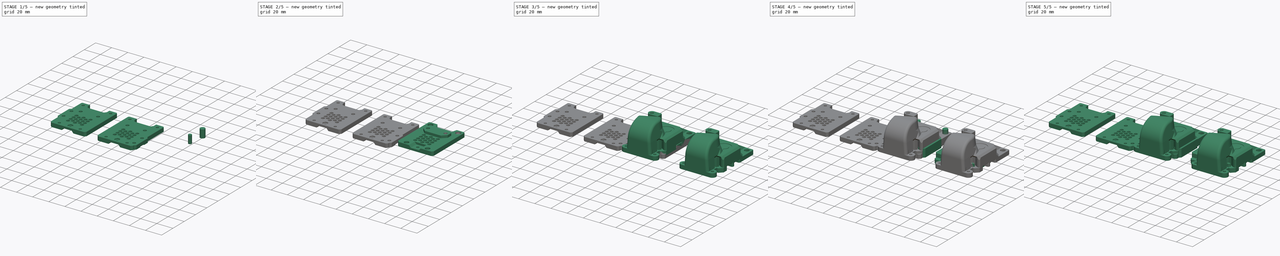
[diagram: build sequence overview — one tinted view per stage of 5, left to right]
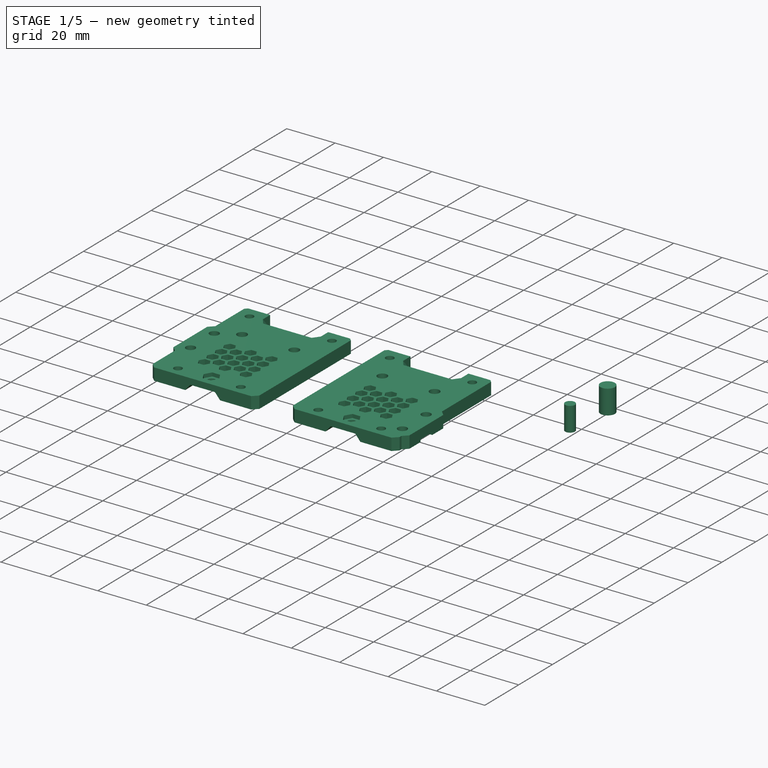
[diagram: stage 1 of 5 — iso view after this stage's code; geometry added in this stage tinted green]
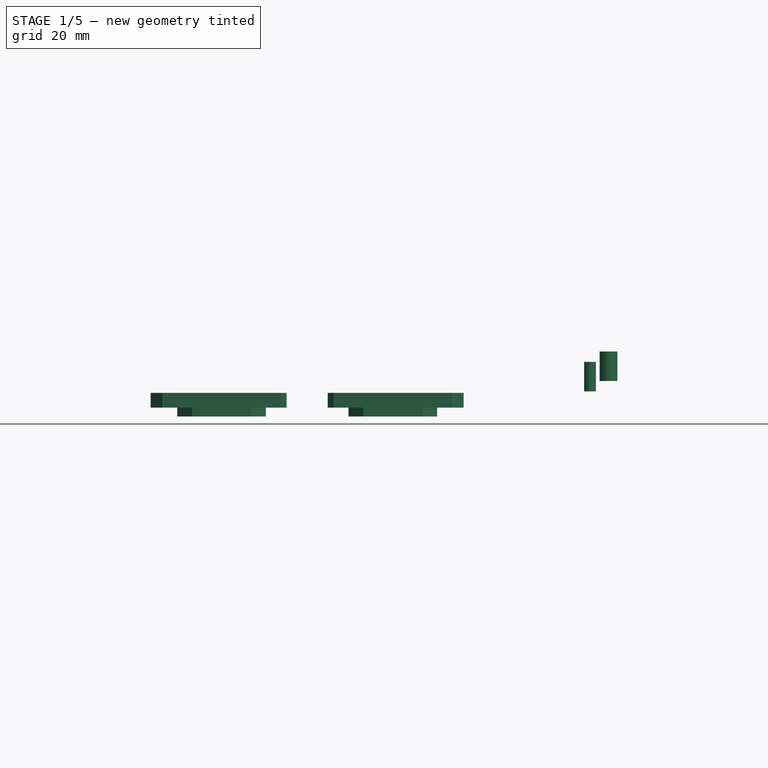
[diagram: stage 1 of 5 — front view after this stage's code; geometry added in this stage tinted green]
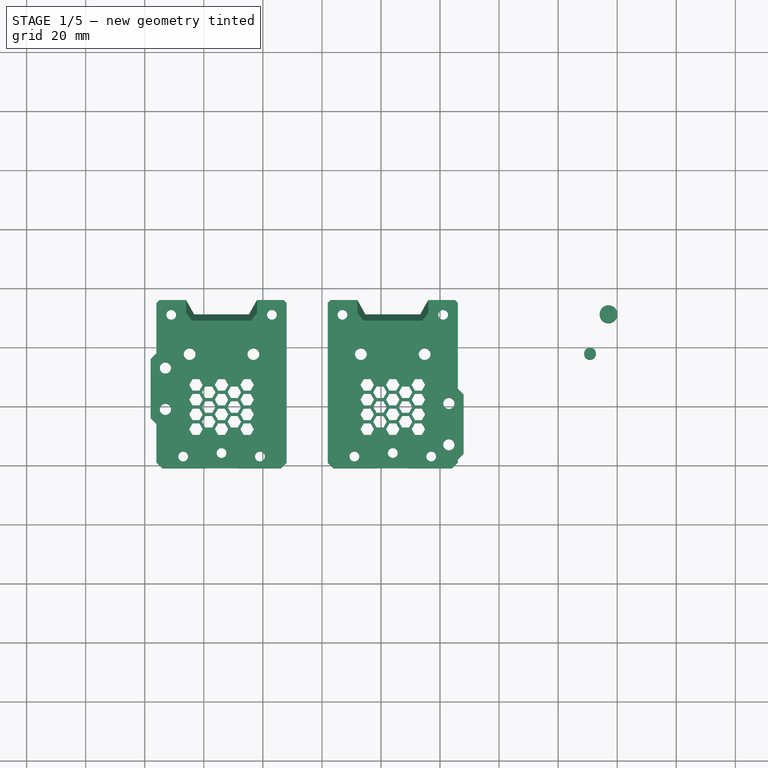
[diagram: stage 1 of 5 — top view after this stage's code; geometry added in this stage tinted green]
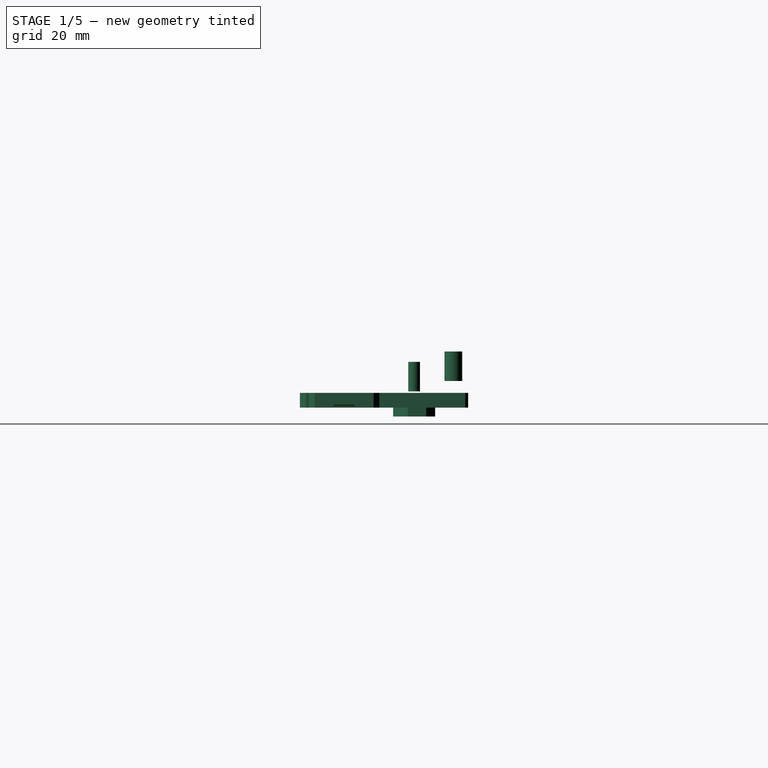
[diagram: stage 1 of 5 — right view after this stage's code; geometry added in this stage tinted green]
FCSTD DOCUMENT  (FreeCAD 0.19R24291 (Git))
Label: mounting-plate-2020-idex
License: All rights reserved
LicenseURL: http://en.wikipedia.org/wiki/All_rights_reserved
objects: Part::Cut×23, Part::Box×20, Part::Feature×19, Part::MultiFuse×17, Part::Cylinder×16, Part::Chamfer×13, PartDesign::Pad×6, Part::MultiCommon×3, Part::Extrusion×2, PartDesign::FeatureBase×2, Sketcher::SketchObject×2, PartDesign::Body×2
note: 131 computed .brp shape members not serialized (recipe doc carries the construction recipe); baked Part::Feature solids carry a one-line shape summary decoded from their .brp

FEATURE [Part::Feature] Part__Feature079  label="universal_face005"
  Placement = pos=(-0.00422634,7.50353,0.50127) rot=(-1,0,0;1.5708rad)
  shape: bbox 44.11 x 57.01 x 8.01 mm, 258 faces (baked)
FEATURE [Part::Feature] Part__Feature074_cs003
  shape: bbox 30 x 14.2 x 3e-07 mm, 0 faces, 0 solids (baked)
FEATURE [Part::Box] Box033  label="Cube029"
  AttacherType = Attacher::AttachEngine3D
  Height = 2.5
  Length = 12
  Placement = pos=(-24,-9.5,4.5) rot=(0,0,1;0rad)
  Width = 7
FEATURE [Part::Cylinder] Cylinder030
  Angle = 360
  AttacherType = Attacher::AttachEngine3D
  Height = 10
  Placement = pos=(19,13,0) rot=(0,0,1;0rad)
  Radius = 1.9
FEATURE [Part::Cylinder] Cylinder031
  Angle = 360
  AttacherType = Attacher::AttachEngine3D
  Height = 10
  Placement = pos=(-19,-13,0) rot=(0,0,1;0rad)
  Radius = 1.9
FEATURE [Part::Box] Box035  label="Cube031"
  AttacherType = Attacher::AttachEngine3D
  Height = 5
  Length = 3
  Placement = pos=(-24,-18,0.5) rot=(0,0,1;0rad)
  Width = 24
FEATURE [Part::Box] Box031  label="Cube027"
  AttacherType = Attacher::AttachEngine3D
  Height = 2.5
  Length = 12
  Placement = pos=(12,2.5,4.5) rot=(0,0,1;0rad)
  Width = 7
FEATURE [Part::Cylinder] Cylinder027
  Angle = 360
  AttacherType = Attacher::AttachEngine3D
  Height = 10
  Placement = pos=(19,-1,0) rot=(0,0,1;0rad)
  Radius = 1.9
FEATURE [Part::Chamfer] Chamfer008007
  Base = -> Box035
  Edges = 2 edges r=2: [Edge1,Edge3]
FEATURE [Part::Cylinder] Cylinder037
  Angle = 360
  AttacherType = Attacher::AttachEngine3D
  Height = 10
  Placement = pos=(17.05,31,3.5) rot=(0,0,1;1.5708rad)
  Radius = 3
FEATURE [Part::Box] Box029  label="Cube025"
  AttacherType = Attacher::AttachEngine3D
  Height = 5
  Length = 3
  Placement = pos=(21,-6,0.5) rot=(0,0,1;0rad)
  Width = 24
FEATURE [Part::Chamfer] Chamfer008004
  Base = -> Box029
  Edges = 2 edges r=2: [Edge5,Edge7]
FEATURE [Part::Cylinder] Cylinder038
  Angle = 360
  AttacherType = Attacher::AttachEngine3D
  Height = 10
  Placement = pos=(10.8,17.705,0) rot=(0,0,1;0rad)
  Radius = 2
FEATURE [Part::Cylinder] Cylinder024
  Angle = 360
  AttacherType = Attacher::AttachEngine3D
  Height = 10
  Placement = pos=(-19,1,0) rot=(0,0,1;0rad)
  Radius = 1.9
FEATURE [Part::Chamfer] Chamfer005021077002006007019003032018001005
  Base = -> Box031
  Edges = 1 edges r=0.5: [Edge4]
FEATURE [Part::Chamfer] Chamfer005021077002006007019003032018001006
  Base = -> Box033
  Edges = 1 edges r=0.5: [Edge8]
FEATURE [Part::Feature] Fusion001007011026007010001  label="front-plate-standard-base001"
  shape: bbox 44.1 x 57 x 8 mm, 175 faces (baked)
FEATURE [Part::Feature] Fusion001007011026007010002  label="front-plate-standard-base002"
  shape: bbox 44.1 x 57 x 8 mm, 175 faces (baked)
FEATURE [Part::MultiFuse] Fusion001007011026007010003
  Shapes = -> [Fusion001007011026007010002,Chamfer008007]
FEATURE [Part::MultiFuse] Fusion001007011026007010004
  Shapes = -> [Cylinder024,Chamfer005021077002006007019003032018001006,Cylinder031]
FEATURE [Part::MultiFuse] Fusion001007011026007010005
  Shapes = -> [Cylinder030,Chamfer005021077002006007019003032018001005,Cylinder027]
FEATURE [Part::Cut] Cut008004003012001003001010001026021  label="front-standard-bottom"
  Base = -> Fusion001007011026007010003
  Placement = pos=(-56,0,0) rot=(0,1,0;3.14159rad)
  Refine = true
  Tool = -> Fusion001007011026007010004
FEATURE [Part::MultiFuse] Fusion001007011026007010006
  Shapes = -> [Fusion001007011026007010001,Chamfer008004]
FEATURE [Part::Cut] Cut008004003012001003001010001026022  label="front-standard-top"
  Base = -> Fusion001007011026007010006
  Placement = pos=(-114,0,0) rot=(0,1,0;3.14159rad)
  Refine = true
  Tool = -> Fusion001007011026007010005
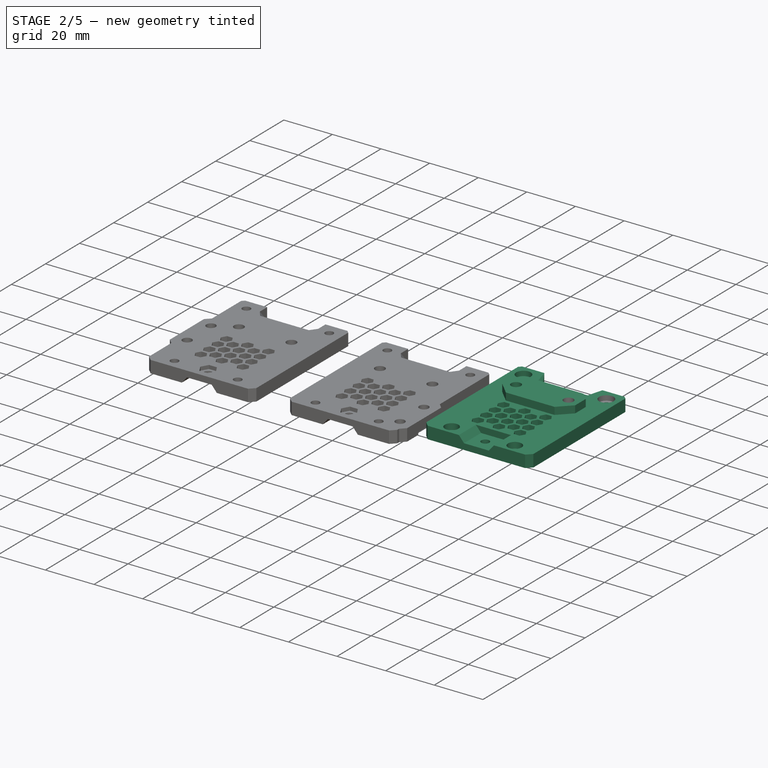
[diagram: stage 2 of 5 — iso view after this stage's code; geometry added in this stage tinted green]
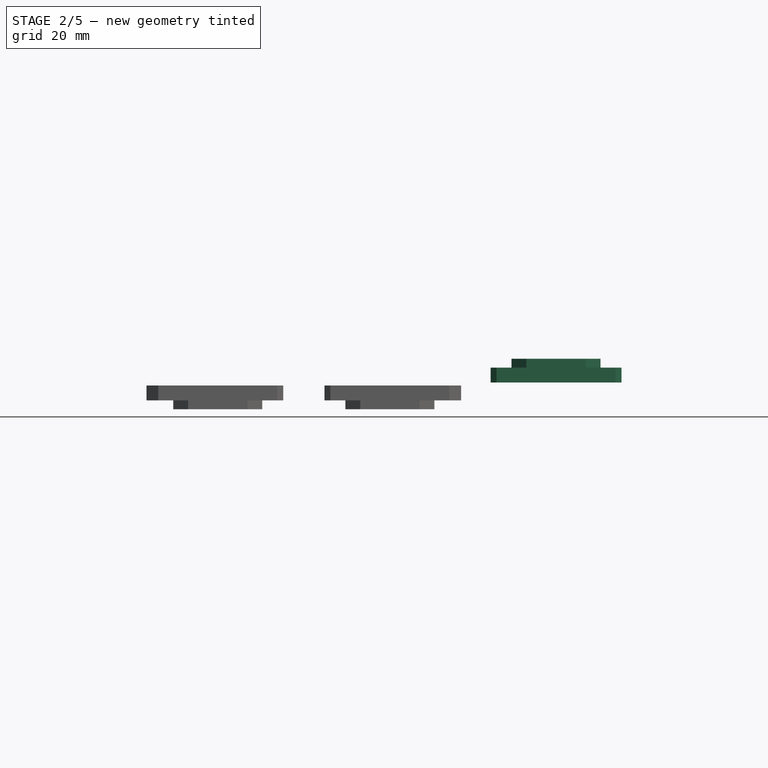
[diagram: stage 2 of 5 — front view after this stage's code; geometry added in this stage tinted green]
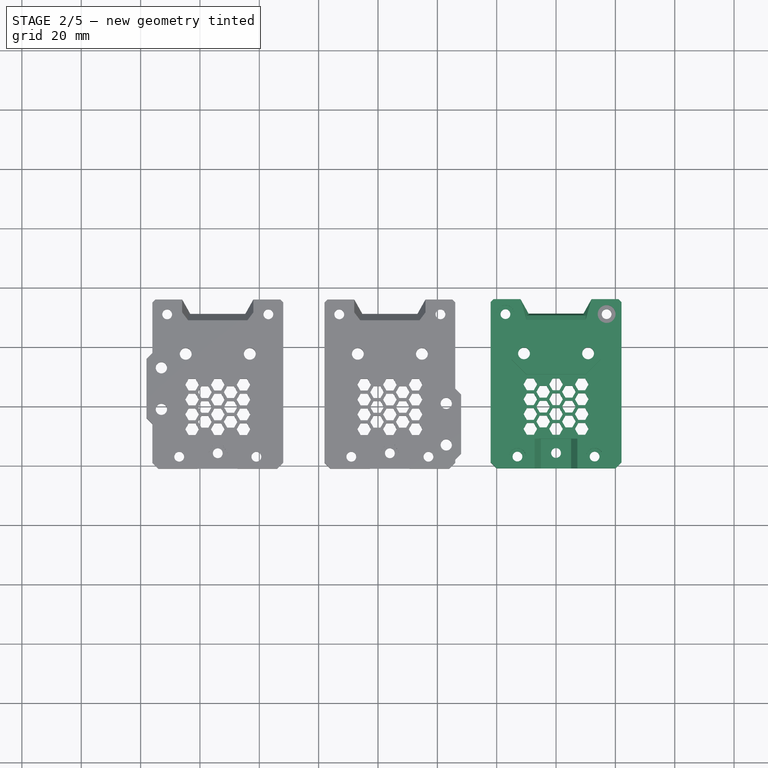
[diagram: stage 2 of 5 — top view after this stage's code; geometry added in this stage tinted green]
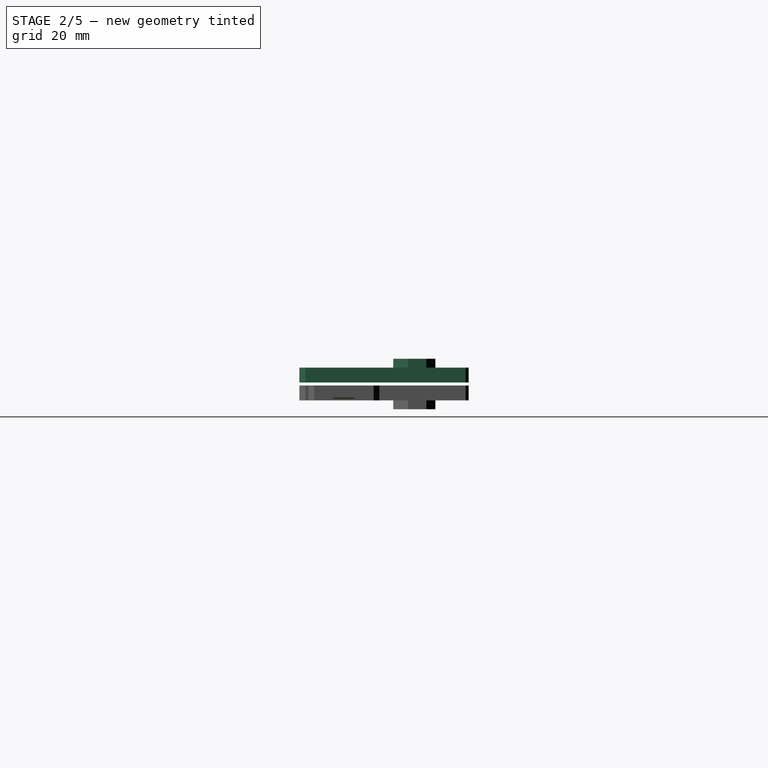
[diagram: stage 2 of 5 — right view after this stage's code; geometry added in this stage tinted green]
FEATURE [Part::Feature] Body012  label="base-plate002"
  shape: bbox 44.1 x 57 x 5 mm, 134 faces (baked)
FEATURE [Part::Box] Box067  label="Cube062"
  AttacherType = Attacher::AttachEngine3D
  Height = 10
  Length = 26
  Placement = pos=(-13,27,0) rot=(0,0,1;0rad)
  Width = 10
FEATURE [Part::Extrusion] Extrude003002003
  Base = -> Part__Feature074_cs003
  Dir = (0,0,1)
  DirMode = 2
  FaceMakerClass = Part::FaceMakerBullseye
  LengthFwd = 3
  LengthRev = 0
  Placement = pos=(0,0,-1) rot=(0,0,1;0rad)
  Solid = true
  Symmetric = false
FEATURE [Part::Cylinder] Cylinder033
  Angle = 360
  AttacherType = Attacher::AttachEngine3D
  Height = 10
  Placement = pos=(-10.8,17.71,0) rot=(0,0,1;1.5708rad)
  Radius = 2
FEATURE [Part::Box] Box068  label="Cube063"
  AttacherType = Attacher::AttachEngine3D
  Height = 10
  Length = 15
  Placement = pos=(-7.5,-21,2.5) rot=(0,0,1;0rad)
  Width = 11
FEATURE [Part::MultiFuse] Fusion001007011026007011
  Shapes = -> [Extrude003002003,Body012]
FEATURE [Part::Box] Box069  label="Cube064"
  AttacherType = Attacher::AttachEngine3D
  Height = 10
  Length = 26
  Placement = pos=(-13,27,0) rot=(0,0,1;0rad)
  Width = 10
FEATURE [Part::MultiCommon] Common002
  Placement = pos=(0,0,-0.00126953) rot=(0,0,1;0rad)
  Shapes = -> [Part__Feature079,Box069]
FEATURE [Part::Cylinder] Cylinder034
  Angle = 360
  AttacherType = Attacher::AttachEngine3D
  Height = 10
  Placement = pos=(-17.05,31,3.5) rot=(0,0,1;1.5708rad)
  Radius = 3
FEATURE [Part::Feature] Body013
  shape: bbox 5.6 x 5.6 x 10 mm, 3 faces (baked)
FEATURE [Part::Cylinder] Cylinder035
  Angle = 360
  AttacherType = Attacher::AttachEngine3D
  Height = 1
  Placement = pos=(0,-15.8,2) rot=(0,0,1;0rad)
  Radius = 1.65
FEATURE [Part::Cylinder] Cylinder036
  Angle = 360
  AttacherType = Attacher::AttachEngine3D
  Height = 1
  Placement = pos=(0,-15.8,2) rot=(0,0,1;0rad)
  Radius = 4
FEATURE [Part::Cut] Cut008004003012001003001010001026020
  Base = -> Cylinder036
  Tool = -> Cylinder035
FEATURE [Part::Feature] Part__Feature080  label="universal_face006"
  Placement = pos=(-0.00422634,7.50353,0.50127) rot=(-1,0,0;1.5708rad)
  shape: bbox 44.11 x 57.01 x 8.01 mm, 258 faces (baked)
FEATURE [Part::Cut] Cut008004003012001003001010001026019
  Base = -> Box068
  Tool = -> Part__Feature080
FEATURE [Part::MultiFuse] Fusion001007011026007008
  Shapes = -> [Cylinder034,Cylinder037]
FEATURE [Part::Feature] Body014
  Placement = pos=(26,0,0) rot=(0,0,1;0rad)
  shape: bbox 5.6 x 5.6 x 10 mm, 3 faces (baked)
FEATURE [Part::MultiFuse] Fusion001007011026007013
  Placement = pos=(0,0,3) rot=(0,0,1;0rad)
  Shapes = -> [Body014,Body013]
FEATURE [Part::MultiFuse] Fusion001007011026007009
  Shapes = -> [Cylinder038,Cylinder033]
FEATURE [Part::Cut] Cut008004003012001003001010001026017
  Base = -> Fusion001007011026007011
  Placement = pos=(0,0,0.5) rot=(0,0,1;0rad)
  Tool = -> Fusion001007011026007009
FEATURE [Part::Cut] Cut008004003012001003001010001026015
  Base = -> Cut008004003012001003001010001026017
  Tool = -> Fusion001007011026007008
FEATURE [Part::Cut] Cut008004003012001003001010001026016
  Base = -> Cut008004003012001003001010001026015
  Tool = -> Fusion001007011026007013
FEATURE [Part::Cut] Cut008004003012001003001010001026014
  Base = -> Cut008004003012001003001010001026016
  Tool = -> Cut008004003012001003001010001026019
FEATURE [Part::MultiFuse] Fusion001007011026007012
  Shapes = -> [Cut008004003012001003001010001026020,Cut008004003012001003001010001026014]
FEATURE [Part::Cut] Cut008004003012001003001010001026018
  Base = -> Fusion001007011026007012
  Tool = -> Box067
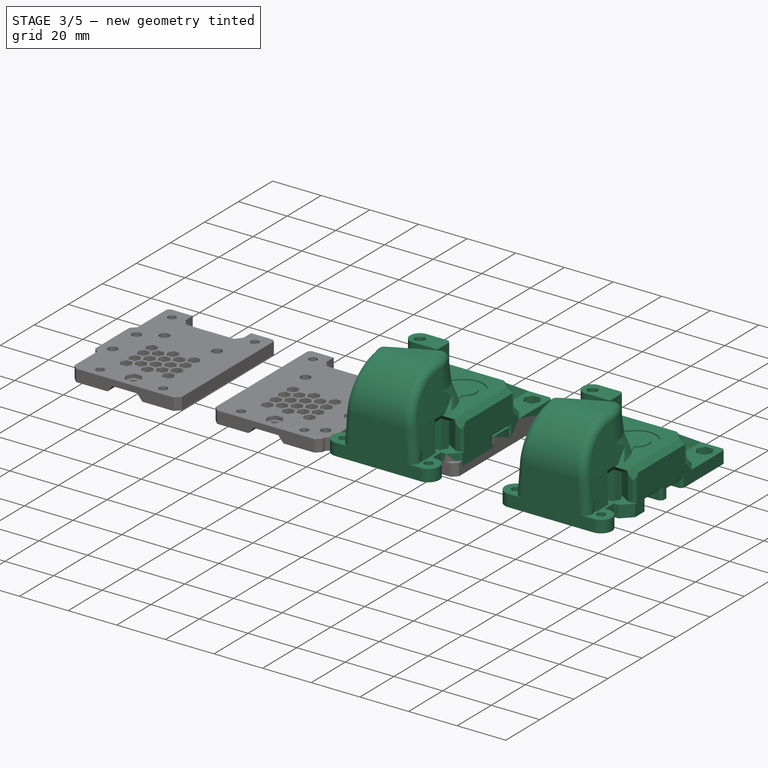
[diagram: stage 3 of 5 — iso view after this stage's code; geometry added in this stage tinted green]
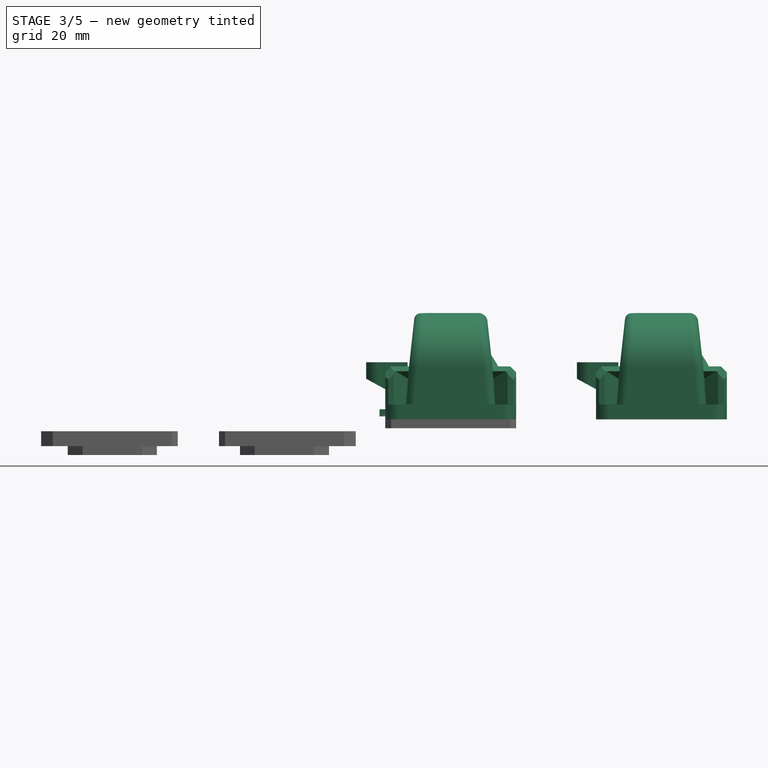
[diagram: stage 3 of 5 — front view after this stage's code; geometry added in this stage tinted green]
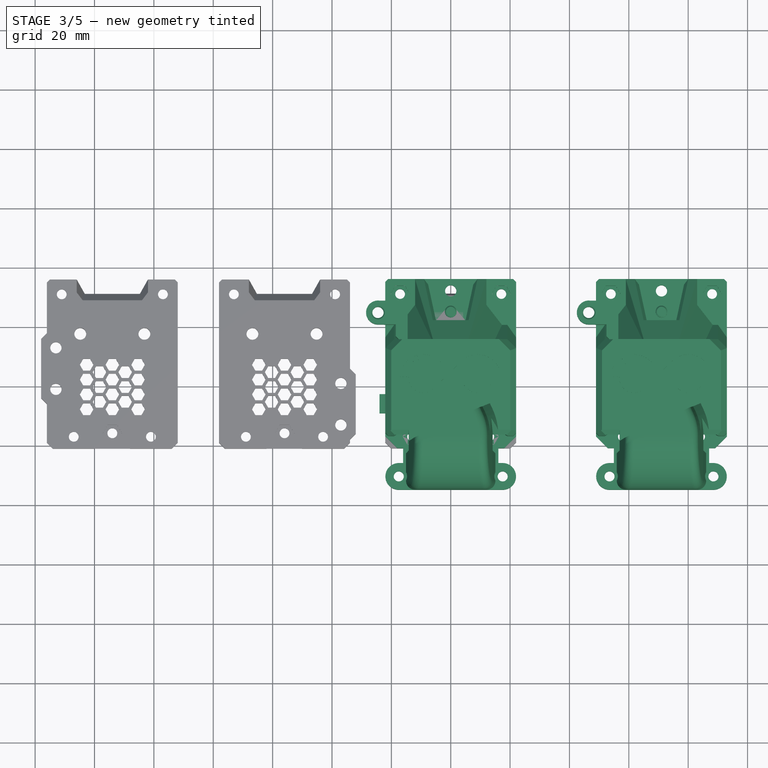
[diagram: stage 3 of 5 — top view after this stage's code; geometry added in this stage tinted green]
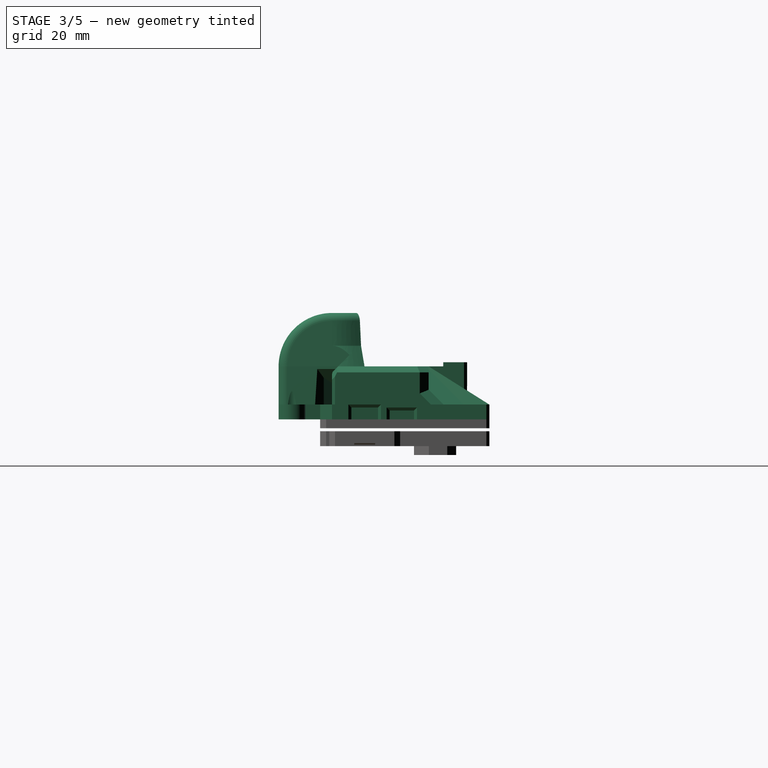
[diagram: stage 3 of 5 — right view after this stage's code; geometry added in this stage tinted green]
FEATURE [Part::Box] Box057  label="Cube053"
  AttacherType = Attacher::AttachEngine3D
  Height = 16.7
  Length = 44.1
  Placement = pos=(-22.05,-12.6,3.5) rot=(0,0,1;0rad)
  Width = 13.2
FEATURE [Part::Box] Box058  label="Cube054"
  AttacherType = Attacher::AttachEngine3D
  Height = 4
  Length = 44.1
  Placement = pos=(-22.05,1.5,3.5) rot=(0,0,1;0rad)
  Width = 9
FEATURE [Part::Box] Box060  label="Cube056"
  AttacherType = Attacher::AttachEngine3D
  Height = 4
  Length = 44.1
  Placement = pos=(-22.05,-10.5,3.5) rot=(0,0,1;0rad)
  Width = 9
FEATURE [Part::Box] Box064  label="Cube059"
  AttacherType = Attacher::AttachEngine3D
  Height = 15
  Length = 14
  Placement = pos=(11,0,0) rot=(0,0,1;0rad)
  Width = 13
FEATURE [Part::Cut] Cut008004003012001003001010001026009  label="bottom-belt-cut"
  Base = -> Fusion001007011026007002
  Tool = -> Box064
FEATURE [Part::Chamfer] Chamfer005021077002006007019003032018001002
  Base = -> Box057
  Edges = 2 edges r=1: [Edge2,Edge6]
FEATURE [Part::Feature] Defeatured  label="back-plate-2p4-2020-1"
  shape: bbox 51.76 x 72.2 x 37.05 mm, 526 faces (baked)
FEATURE [Part::Box] Box066  label="Cube061"
  AttacherType = Attacher::AttachEngine3D
  Height = 4
  Length = 44.1
  Placement = pos=(-22.05,1.5,3.5) rot=(0,0,1;0rad)
  Width = 9
FEATURE [PartDesign::FeatureBase] BaseFeature
  BaseFeature = -> Defeatured
FEATURE [PartDesign::Pad] Pad
  BaseFeature = -> BaseFeature
  Direction = (1,1,1)
  Length = 3
  Length2 = 100
  Profile = -> BaseFeature [Face420]
  Type = 0
FEATURE [PartDesign::Pad] Pad001
  BaseFeature = -> Pad
  Direction = (1,1,1)
  Length = 16.7
  Length2 = 100
  Profile = -> Pad [Face5]
  Type = 0
FEATURE [Sketcher::SketchObject] Sketch
  ExternalGeometry = -> [Pad001]
  FullyConstrained = true
  MapMode = 5
  Placement = pos=(-22.05,-5.1e-15,6.6e-15) rot=(0.57735,-0.57735,-0.57735;2.0944rad)
  Support = -> [Pad001]
  sketch-geometry (1):
    g0: Circle CenterX=-6.5 CenterY=15.5 CenterZ=0 NormalX=0 NormalY=0 NormalZ=1 AngleXU=0 Radius=3.6
  constraints (3):
    c: Radius(g-3) = 3.6
    c: Coincident(g0,g-3)
    c: Radius(g0) = 3.6
FEATURE [PartDesign::Pad] Pad002
  BaseFeature = -> Pad001
  Direction = (1,1,1)
  Length = 10
  Length2 = 100
  Profile = -> Sketch
  Type = 3
  UpToFace = -> Pad001 [Face504]
FEATURE [PartDesign::Body] Body  label="top-fill"
  BaseFeature = -> Defeatured
  Group = -> [BaseFeature,Pad,Pad001,Sketch,Pad002]
  Origin = -> Origin
  Tip = -> Pad002
FEATURE [Part::Cut] Cut008004003012001003001010001026012
  Base = -> Body
  Refine = true
  Tool = -> Box058
FEATURE [PartDesign::FeatureBase] BaseFeature001
  BaseFeature = -> Defeatured
FEATURE [PartDesign::Pad] Pad003
  BaseFeature = -> BaseFeature001
  Direction = (1,1,1)
  Length = 3
  Length2 = 100
  Profile = -> BaseFeature001 [Face461]
  Type = 0
FEATURE [PartDesign::Pad] Pad004
  BaseFeature = -> Pad003
  Direction = (1,1,1)
  Length = 16.7
  Length2 = 100
  Profile = -> Pad003 [Face95]
  Type = 0
FEATURE [Sketcher::SketchObject] Sketch001
  ExternalGeometry = -> [Pad004]
  FullyConstrained = true
  MapMode = 5
  Placement = pos=(22.05,5.1e-15,-6.6e-15) rot=(0.57735,0.57735,0.57735;2.0944rad)
  Support = -> [Pad004]
  sketch-geometry (1):
    g0: Circle CenterX=-6.5 CenterY=15.5 CenterZ=0 NormalX=0 NormalY=0 NormalZ=1 AngleXU=0 Radius=3.6
  constraints (2):
    c: Coincident(g0,g-3)
    c: Radius(g0) = 3.6
FEATURE [PartDesign::Pad] Pad005
  BaseFeature = -> Pad004
  Direction = (1,1,1)
  Length = 10
  Length2 = 100
  Profile = -> Sketch001
  Type = 3
  UpToFace = -> Pad004 [Face507]
FEATURE [PartDesign::Body] Body011  label="bottom-fill"
  BaseFeature = -> Defeatured
  Group = -> [BaseFeature001,Pad003,Pad004,Sketch001,Pad005]
  Origin = -> Origin001
  Tip = -> Pad005
FEATURE [Part::Cut] Cut008004003012001003001010001026013
  Base = -> Body011
  Refine = true
  Tool = -> Box060
FEATURE [Part::Chamfer] Chamfer005021077002006007019003032018001003  label="back-top"
  Base = -> Cut008004003012001003001010001026013
  Edges = 9 edges r=1: [Edge140,Edge142,Edge143,Edge145,Edge146,Edge147,Edge578,Edge593,Edge649]
  Placement = pos=(71,0,0) rot=(0,0,1;0rad)
FEATURE [Part::Chamfer] Chamfer005021077002006007019003032018001004  label="back-bottom"
  Base = -> Cut008004003012001003001010001026012
  Edges = 9 edges r=1: [Edge204,Edge206,Edge208,Edge210,Edge211,Edge212,Edge213,Edge216,Edge219]
FEATURE [Part::MultiFuse] Fusion001007011026007010  label="front-plate-standard-base"
  Shapes = -> [Common002,Cut008004003012001003001010001026018]
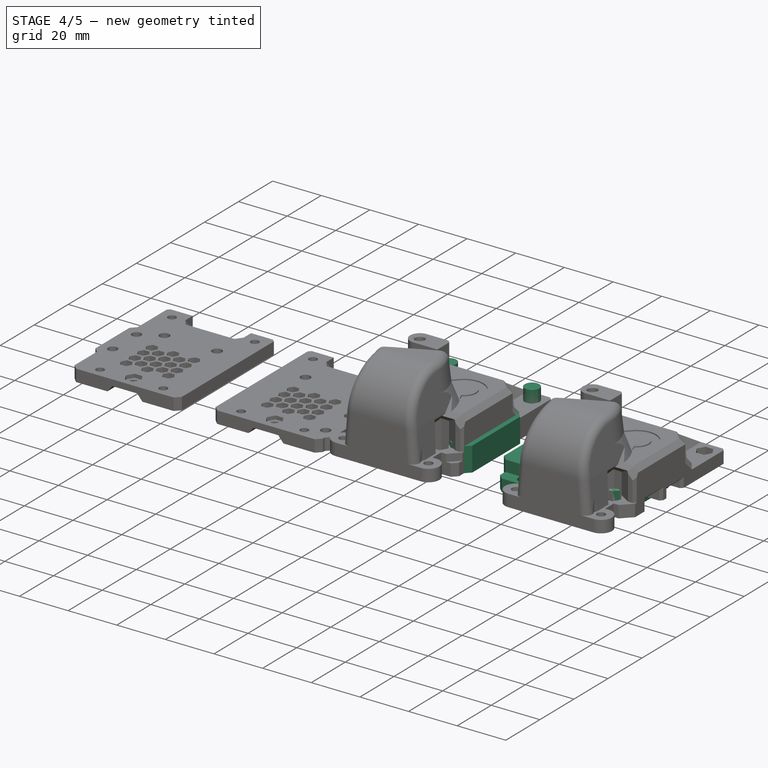
[diagram: stage 4 of 5 — iso view after this stage's code; geometry added in this stage tinted green]
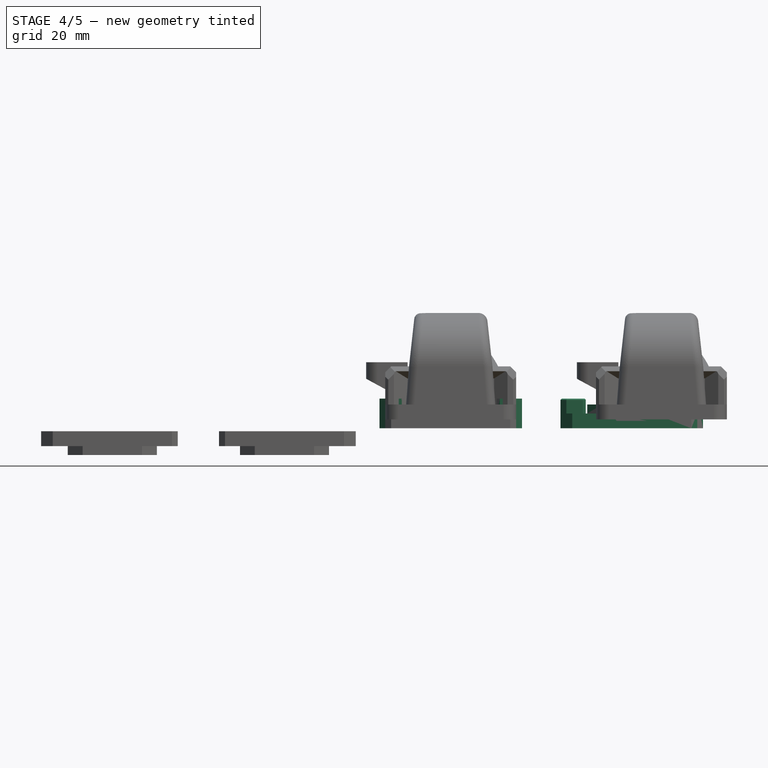
[diagram: stage 4 of 5 — front view after this stage's code; geometry added in this stage tinted green]
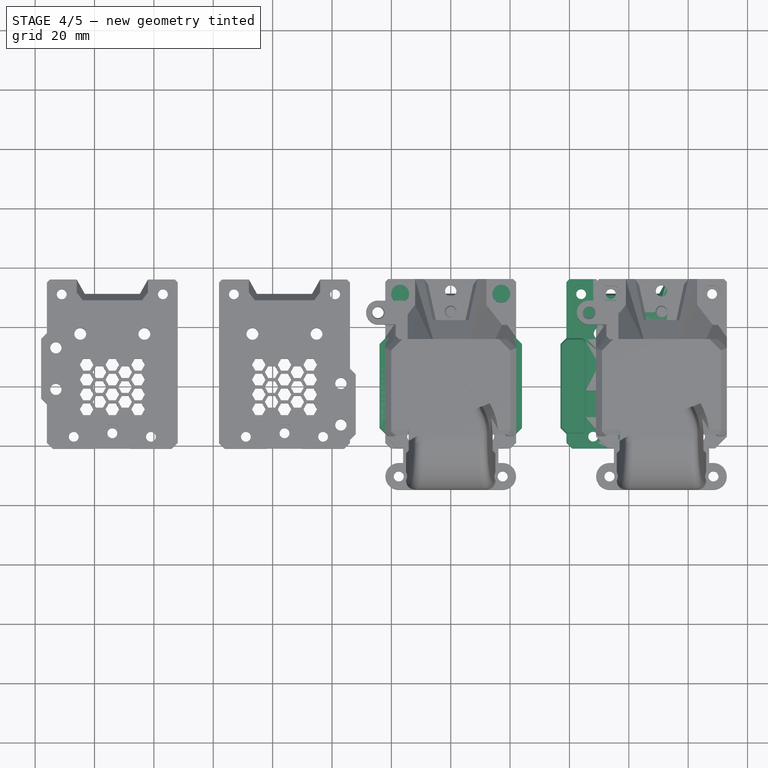
[diagram: stage 4 of 5 — top view after this stage's code; geometry added in this stage tinted green]
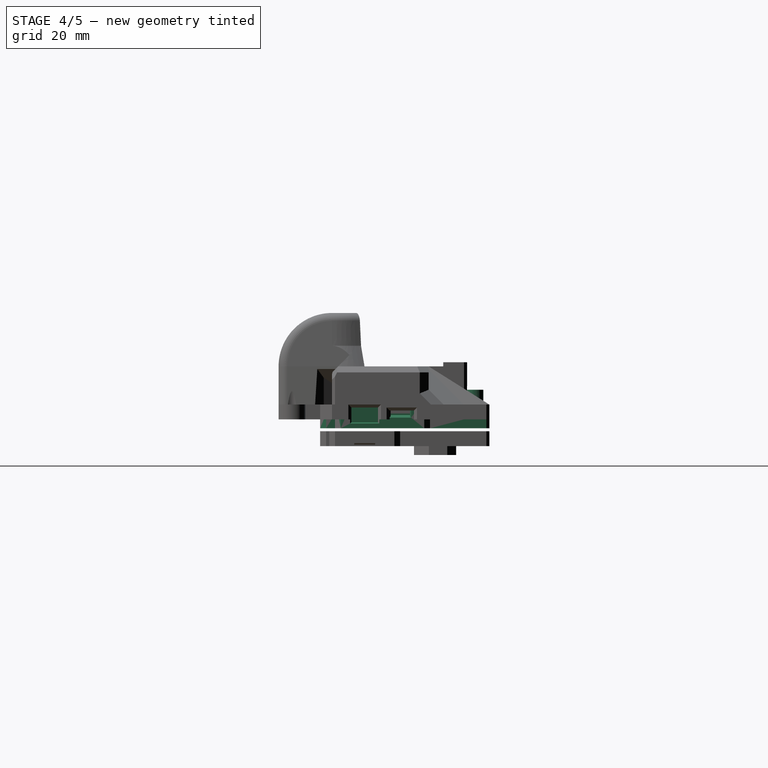
[diagram: stage 4 of 5 — right view after this stage's code; geometry added in this stage tinted green]
FEATURE [Part::Box] Box030  label="Cube026"
  AttacherType = Attacher::AttachEngine3D
  Height = 10
  Length = 26
  Placement = pos=(-13,27,0) rot=(0,0,1;0rad)
  Width = 10
FEATURE [Part::Cylinder] Cylinder029
  Angle = 360
  AttacherType = Attacher::AttachEngine3D
  Height = 10
  Placement = pos=(17.05,31,3.5) rot=(0,0,1;1.5708rad)
  Radius = 3
FEATURE [Part::MultiCommon] Common001
  Placement = pos=(0,0,-0.00126953) rot=(0,0,1;0rad)
  Shapes = -> [Part__Feature077,Box030]
FEATURE [Part::Cylinder] Cylinder032
  Angle = 360
  AttacherType = Attacher::AttachEngine3D
  Height = 10
  Placement = pos=(-17.05,31,3.5) rot=(0,0,1;1.5708rad)
  Radius = 3
FEATURE [Part::MultiFuse] Fusion001007011044
  Shapes = -> [Cylinder032,Cylinder029]
FEATURE [Part::Box] Box  label="bottom-cut"
  AttacherType = Attacher::AttachEngine3D
  Height = 5
  Length = 48
  Placement = pos=(-24,-10.5,2.5) rot=(0,0,1;0rad)
  Width = 9
FEATURE [Part::Box] Box036  label="top-cut"
  AttacherType = Attacher::AttachEngine3D
  Height = 5
  Length = 48
  Placement = pos=(-24,1.5,2.5) rot=(0,0,1;0rad)
  Width = 9
FEATURE [Part::Feature] Fusion001007011026007002  label="belt-cut002"
  Placement = pos=(0,-2.5,0) rot=(0,0,1;0rad)
  shape: bbox 48 x 18.5 x 9 mm, 38 faces, 2 solids (baked)
FEATURE [Part::Box] Box061  label="Cube057"
  AttacherType = Attacher::AttachEngine3D
  Height = 10
  Length = 8.5
  Placement = pos=(-24,-16,0.5) rot=(0,0,1;0rad)
  Width = 32
FEATURE [Part::Box] Box062  label="Cube058"
  AttacherType = Attacher::AttachEngine3D
  Height = 10
  Length = 8.5
  Placement = pos=(15.5,-16,0.5) rot=(0,0,1;0rad)
  Width = 32
FEATURE [Part::Chamfer] Chamfer
  Base = -> Box061
  Edges = 2 edges r=1.95: [Edge1,Edge3]
FEATURE [Part::Chamfer] Chamfer005021077002006007019003032007004006
  Base = -> Box062
  Edges = 2 edges r=1.95: [Edge5,Edge7]
FEATURE [Part::Chamfer] Chamfer005021077002006007019003032007004007
  Base = -> Chamfer
  Edges = 2 edges r=1: [Edge17,Edge18]
FEATURE [Part::Chamfer] Chamfer005021077002006007019003032007004008
  Base = -> Chamfer005021077002006007019003032007004006
  Edges = 2 edges r=1: [Edge17,Edge18]
FEATURE [Part::Feature] Fusion001007011026007005  label="front-plate-base001"
  shape: bbox 48 x 57 x 10 mm, 196 faces (baked)
FEATURE [Part::Feature] Fusion001007011026007006  label="front-plate-base002"
  shape: bbox 48 x 57 x 10 mm, 196 faces (baked)
FEATURE [Part::Cut] Cut
  Base = -> Fusion001007011026007005
  Tool = -> Box036
FEATURE [Part::Cut] Cut008004003012001003001010001026008
  Base = -> Fusion001007011026007006
  Tool = -> Box
FEATURE [Part::Feature] Fusion001007011026007007  label="belt-cut003"
  Placement = pos=(0,-2.5,0) rot=(0,0,1;0rad)
  shape: bbox 48 x 18.5 x 9 mm, 38 faces, 2 solids (baked)
FEATURE [Part::Box] Box063  label="Cube"
  AttacherType = Attacher::AttachEngine3D
  Height = 15
  Length = 14
  Placement = pos=(11,0,0) rot=(0,0,1;0rad)
  Width = 13
FEATURE [Part::MultiCommon] Common  label="top-belt-cut"
  Shapes = -> [Box063,Fusion001007011026007007]
FEATURE [Part::Cut] Cut008004003012001003001010001026010
  Base = -> Cut
  Refine = true
  Tool = -> Cut008004003012001003001010001026009
FEATURE [Part::Cut] Cut008004003012001003001010001026011
  Base = -> Cut008004003012001003001010001026008
  Refine = true
  Tool = -> Common
FEATURE [Part::Chamfer] Chamfer005021077002006007019003032007004009  label="front-top"
  Base = -> Cut008004003012001003001010001026011
  Edges = 35 edges r=0.4: [Edge1,Edge2,Edge3,Edge4,Edge5,Edge6,Edge7,Edge8,Edge17,Edge30,Edge31,Edge32,Edge33,Edge155,Edge187,Edge238,Edge240,Edge242,Edge245,Edge315,Edge320,Edge323,Edge327,Edge453,Edge457,Edge458,Edge459,Edge460,Edge461,Edge546,Edge547,Edge548,Edge549,Edge550,Edge584]
  Placement = pos=(61,0,0) rot=(0,0,1;0rad)
FEATURE [Part::Chamfer] Chamfer005021077002006007019003032007004010  label="front-bottom"
  Base = -> Cut008004003012001003001010001026010
  Edges = 35 edges r=0.4: [Edge1,Edge2,Edge3,Edge4,Edge5,Edge6,Edge7,Edge8,Edge9,Edge10,Edge11,Edge12,Edge22,Edge23,Edge24,Edge25,Edge26,Edge27,Edge28,Edge29,Edge40,Edge46,Edge148,Edge205,Edge308,Edge310,Edge312,Edge314,Edge316,Edge418,Edge422,Edge518,Edge522,Edge557,Edge558]
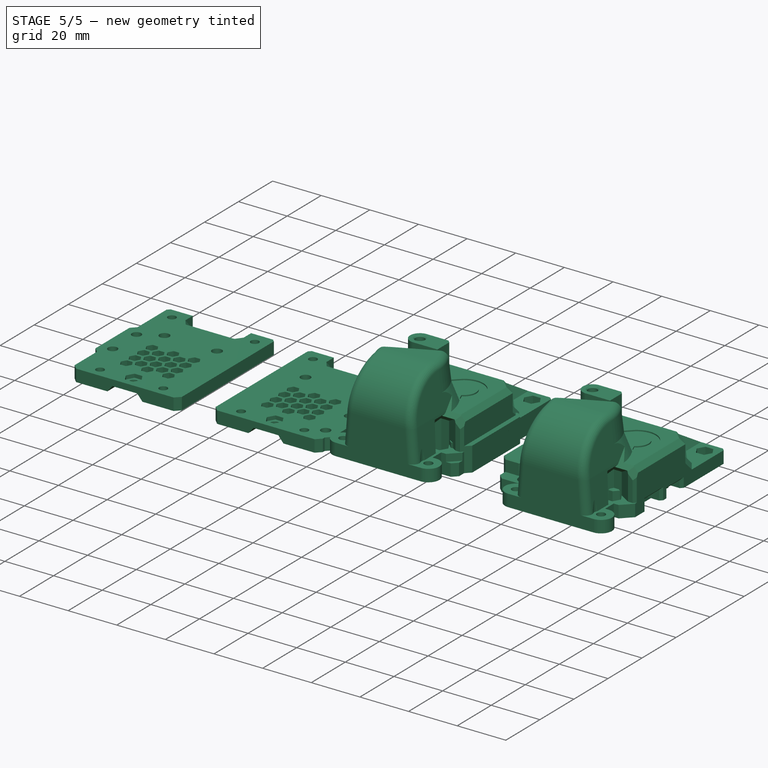
[diagram: stage 5 of 5 — iso view after this stage's code; geometry added in this stage tinted green]
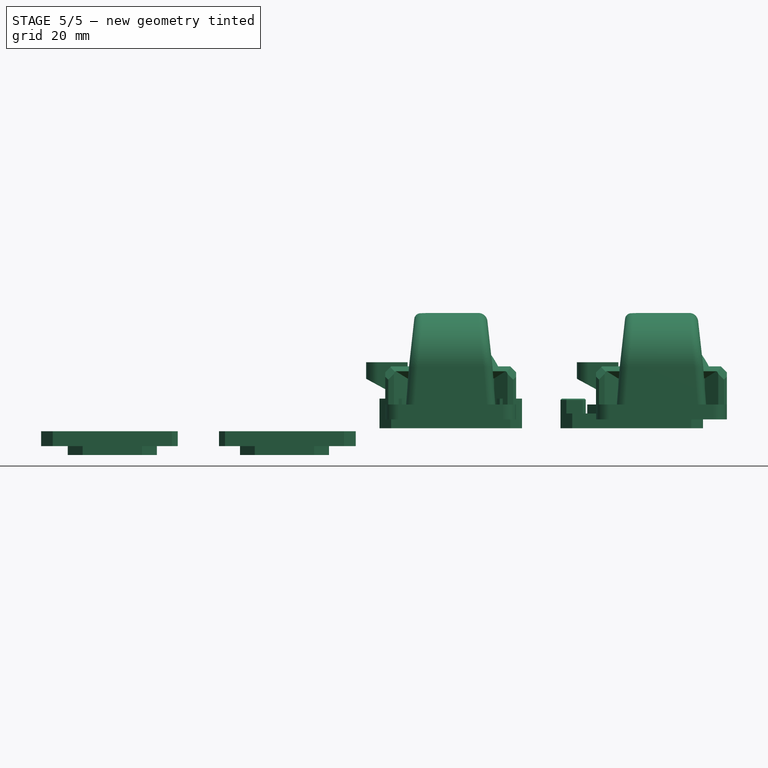
[diagram: stage 5 of 5 — front view after this stage's code; geometry added in this stage tinted green]
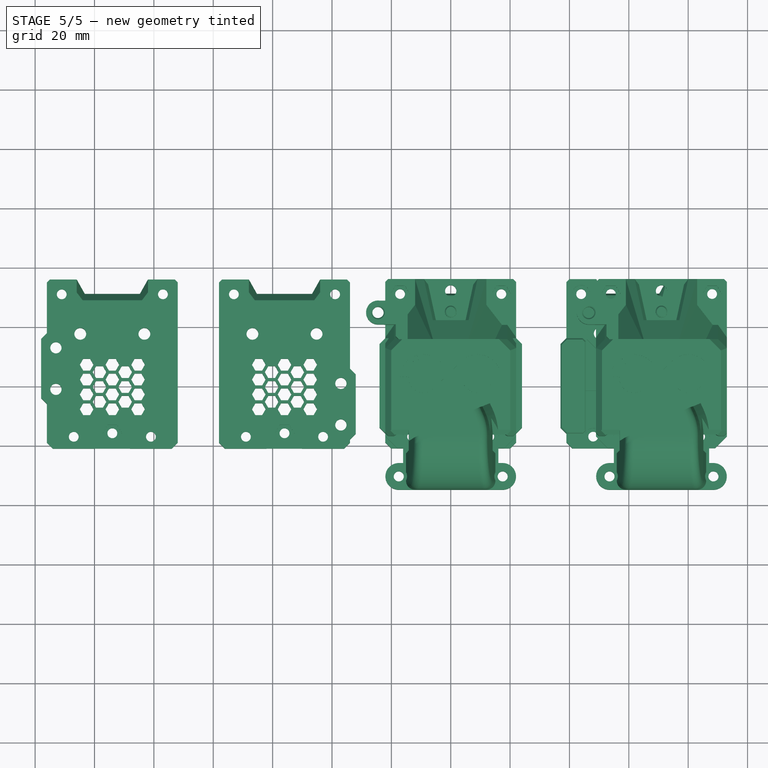
[diagram: stage 5 of 5 — top view after this stage's code; geometry added in this stage tinted green]
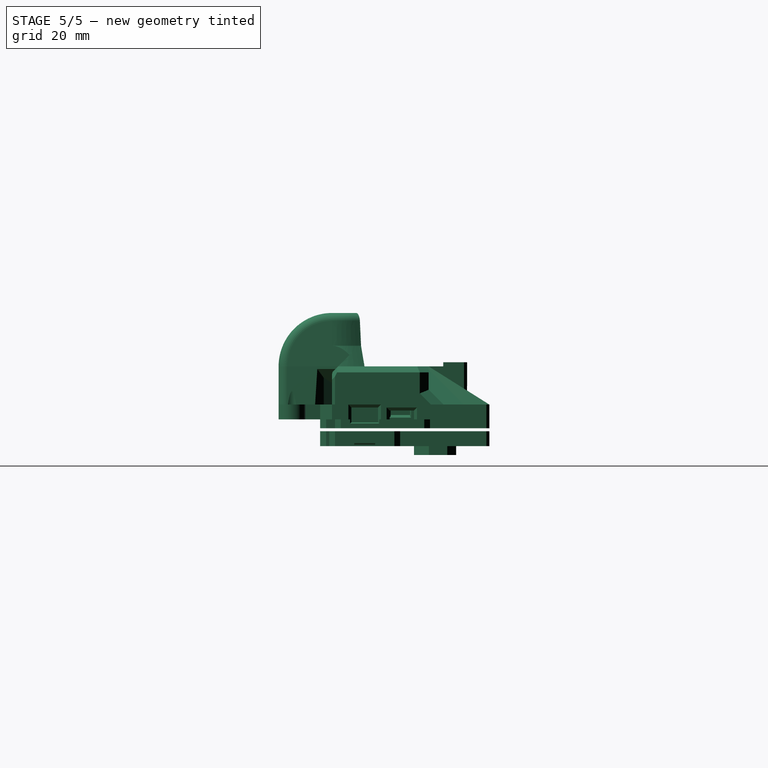
[diagram: stage 5 of 5 — right view after this stage's code; geometry added in this stage tinted green]
FEATURE [Part::Cylinder] Cylinder023
  Angle = 360
  AttacherType = Attacher::AttachEngine3D
  Height = 10
  Placement = pos=(10.8,17.705,0) rot=(0,0,1;0rad)
  Radius = 2
FEATURE [Part::Feature] Body008
  Placement = pos=(26,0,0) rot=(0,0,1;0rad)
  shape: bbox 5.6 x 5.6 x 10 mm, 3 faces (baked)
FEATURE [Part::Cylinder] Cylinder025
  Angle = 360
  AttacherType = Attacher::AttachEngine3D
  Height = 1
  Placement = pos=(0,-15.8,2) rot=(0,0,1;0rad)
  Radius = 4
FEATURE [Part::Cylinder] Cylinder026
  Angle = 360
  AttacherType = Attacher::AttachEngine3D
  Height = 1
  Placement = pos=(0,-15.8,2) rot=(0,0,1;0rad)
  Radius = 1.65
FEATURE [Part::Cut] Cut008004003012001003001010001014
  Base = -> Cylinder025
  Tool = -> Cylinder026
FEATURE [Part::Box] Box032  label="Cube028"
  AttacherType = Attacher::AttachEngine3D
  Height = 10
  Length = 15
  Placement = pos=(-7.5,-21,2.5) rot=(0,0,1;0rad)
  Width = 11
FEATURE [Part::Cylinder] Cylinder028
  Angle = 360
  AttacherType = Attacher::AttachEngine3D
  Height = 10
  Placement = pos=(-10.8,17.71,0) rot=(0,0,1;1.5708rad)
  Radius = 2
FEATURE [Part::MultiFuse] Fusion001007011039
  Shapes = -> [Cylinder023,Cylinder028]
FEATURE [Part::Feature] Part__Feature077  label="universal_face003"
  Placement = pos=(-0.00422634,7.50353,0.50127) rot=(-1,0,0;1.5708rad)
  shape: bbox 44.11 x 57.01 x 8.01 mm, 258 faces (baked)
FEATURE [Part::Feature] Part__Feature074_cs002
  shape: bbox 30 x 14.2 x 3e-07 mm, 0 faces, 0 solids (baked)
FEATURE [Part::Extrusion] Extrude003002002
  Base = -> Part__Feature074_cs002
  Dir = (0,0,1)
  DirMode = 2
  FaceMakerClass = Part::FaceMakerBullseye
  LengthFwd = 3
  LengthRev = 0
  Placement = pos=(0,0,-1) rot=(0,0,1;0rad)
  Solid = true
  Symmetric = false
FEATURE [Part::Box] Box034  label="Cube030"
  AttacherType = Attacher::AttachEngine3D
  Height = 10
  Length = 26
  Placement = pos=(-13,27,0) rot=(0,0,1;0rad)
  Width = 10
FEATURE [Part::Feature] Body009  label="base-plate001"
  shape: bbox 44.1 x 57 x 5 mm, 134 faces (baked)
FEATURE [Part::MultiFuse] Fusion001007011035
  Shapes = -> [Extrude003002002,Body009]
FEATURE [Part::Feature] Part__Feature078  label="universal_face004"
  Placement = pos=(-0.00422634,7.50353,0.50127) rot=(-1,0,0;1.5708rad)
  shape: bbox 44.11 x 57.01 x 8.01 mm, 258 faces (baked)
FEATURE [Part::Cut] Cut008004003012001003001010001015
  Base = -> Box032
  Tool = -> Part__Feature078
FEATURE [Part::Cut] Cut008004003012001003001010001019
  Base = -> Fusion001007011035
  Placement = pos=(0,0,0.5) rot=(0,0,1;0rad)
  Tool = -> Fusion001007011039
FEATURE [Part::Cut] Cut008004003012001003001010001016
  Base = -> Cut008004003012001003001010001019
  Tool = -> Fusion001007011044
FEATURE [Part::Feature] Body010
  shape: bbox 5.6 x 5.6 x 10 mm, 3 faces (baked)
FEATURE [Part::MultiFuse] Fusion001007011036
  Placement = pos=(0,0,3) rot=(0,0,1;0rad)
  Shapes = -> [Body008,Body010]
FEATURE [Part::Cut] Cut008004003012001003001010001017
  Base = -> Cut008004003012001003001010001016
  Tool = -> Fusion001007011036
FEATURE [Part::Cut] Cut008004003012001003001010001018
  Base = -> Cut008004003012001003001010001017
  Tool = -> Cut008004003012001003001010001015
FEATURE [Part::MultiFuse] Fusion001007011037
  Shapes = -> [Cut008004003012001003001010001014,Cut008004003012001003001010001018]
FEATURE [Part::Cut] Cut008004003012001003001010001020
  Base = -> Fusion001007011037
  Tool = -> Box034
FEATURE [Part::MultiFuse] Fusion001007011040
  Refine = true
  Shapes = -> [Common001,Cut008004003012001003001010001020]
FEATURE [Part::MultiFuse] Fusion  label="front-plate-base"
  Shapes = -> [Chamfer005021077002006007019003032007004007,Fusion001007011040,Chamfer005021077002006007019003032007004008]
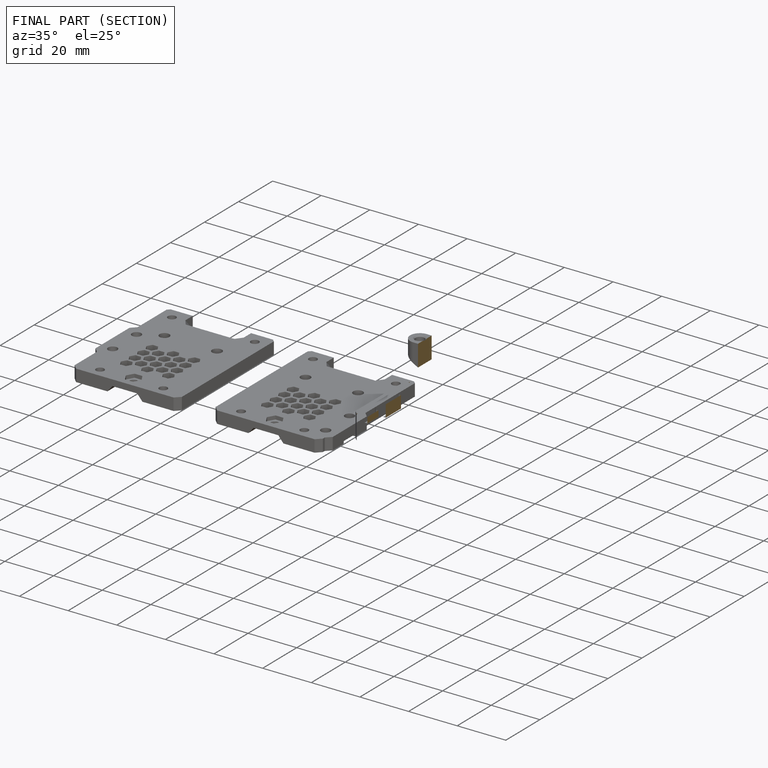
[diagram: finished part — half-section view (interior)]
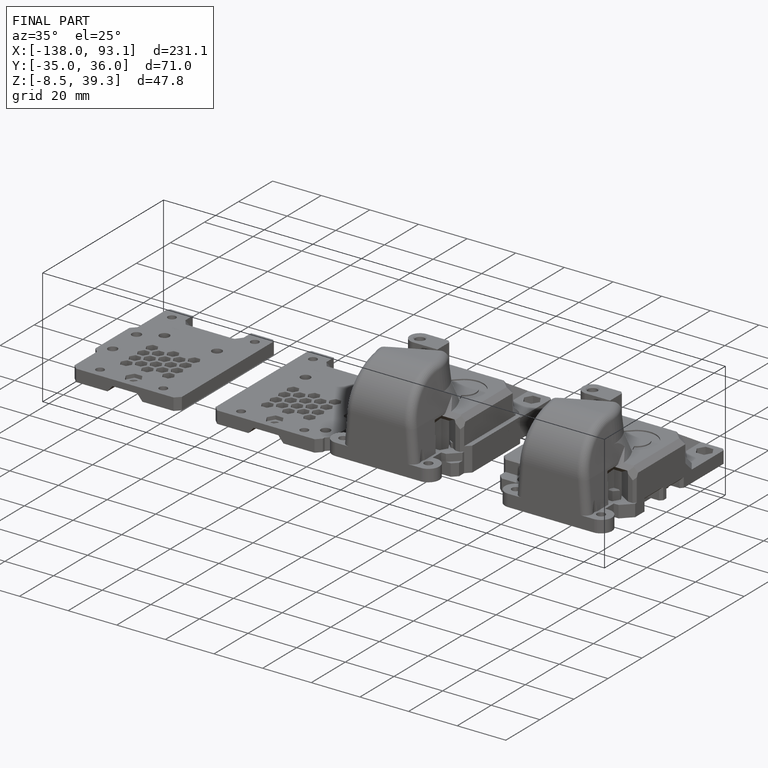
[diagram: finished part — iso view with bounding-box wireframe]
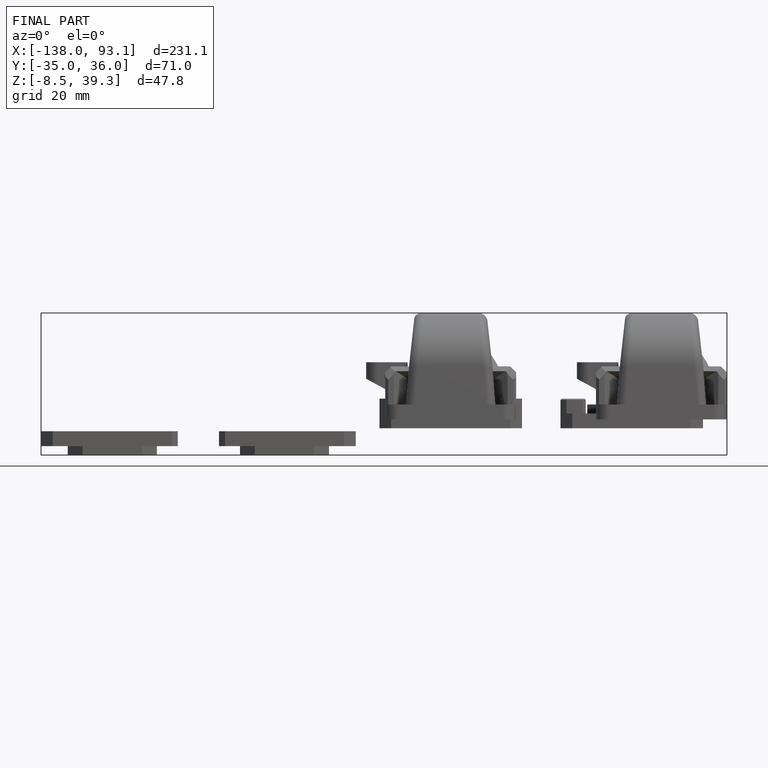
[diagram: finished part — front view with bounding-box wireframe]
